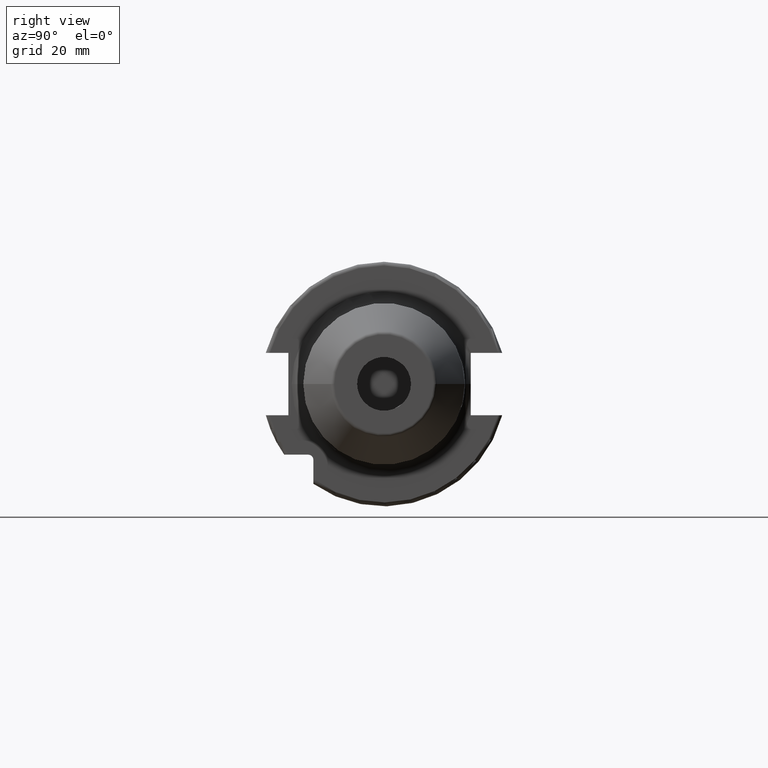
[diagram: clean part render]
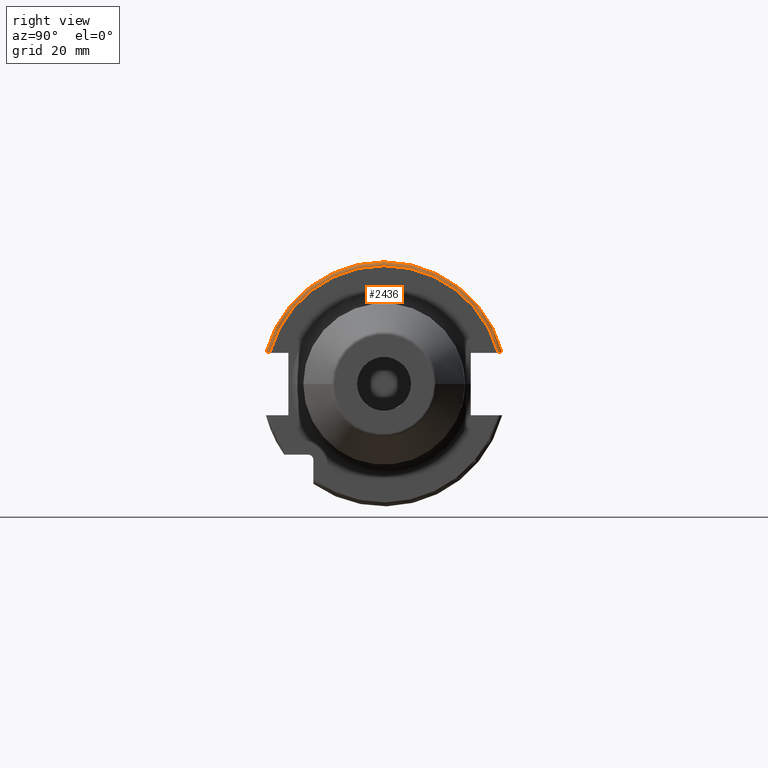
[diagram: same view with one face highlighted and labeled with its STEP entity id]
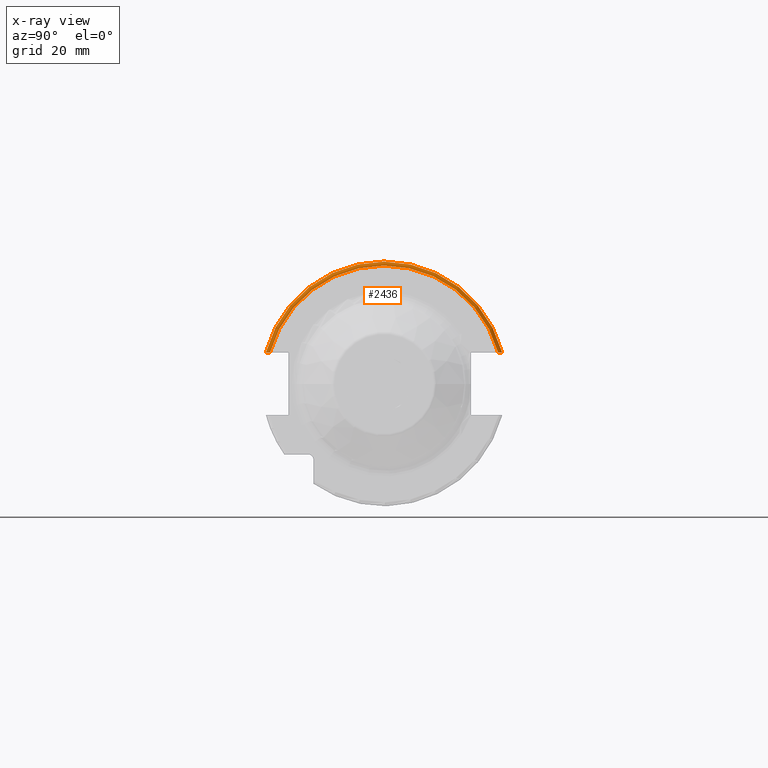
[diagram: x-ray of the same camera — body ghosted, the highlighted face saturated]
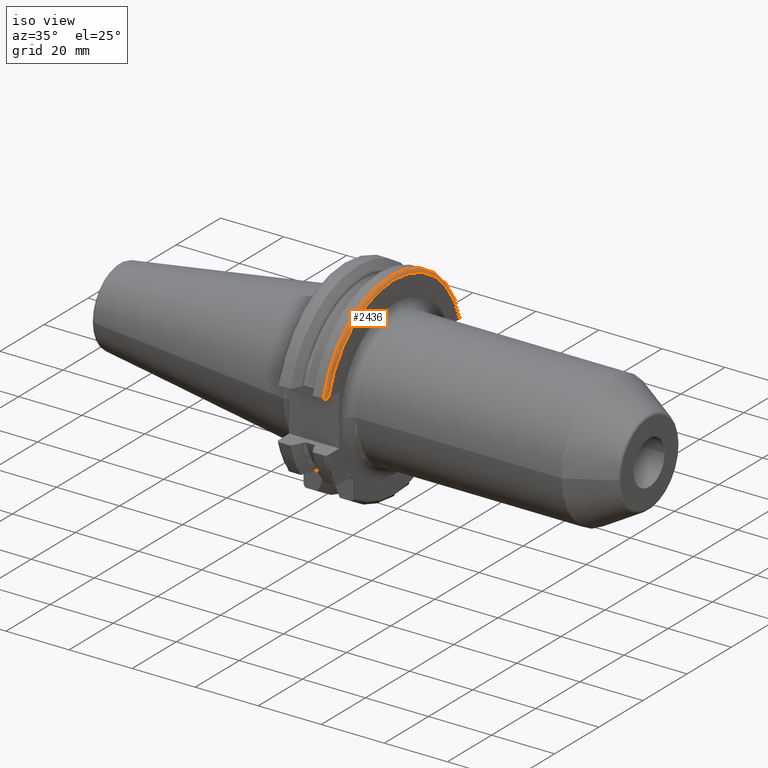
[diagram: same view with one face highlighted and labeled with its STEP entity id]
A machine part, right view. The second image highlights one B-rep face of the part: STEP entity #2436.
The next image is the same camera in x-ray: the body ghosted, the highlighted face saturated — about 0% of this face is hidden behind the body in this view.
A second angle (iso view) of the same face is appended — the face is thin or edge-on in the first view.
In plain terms, the highlighted toroidal blend (fillet) surface has major radius 30.7625 mm and minor (blend) radius 1 mm.
Its self-contained STEP definition (entity closure, byte-faithful):
#740=CARTESIAN_POINT('',(1.905E1,2.967695075728E1,8.1E0));
#741=CARTESIAN_POINT('',(1.905E1,2.975534544469E1,8.1E0));
#742=CARTESIAN_POINT('',(1.903327439626E1,2.990764711142E1,8.1E0));
#743=CARTESIAN_POINT('',(1.895996891946E1,3.012703601742E1,8.1E0));
#744=CARTESIAN_POINT('',(1.884140031799E1,3.032417656220E1,8.1E0));
#745=CARTESIAN_POINT('',(1.868299781019E1,3.048994814949E1,8.1E0));
#746=CARTESIAN_POINT('',(1.849140267654E1,3.061604720054E1,8.1E0));
#747=CARTESIAN_POINT('',(1.827601722220E1,3.069451682863E1,8.1E0));
#748=CARTESIAN_POINT('',(1.812684136073E1,3.071231684927E1,8.1E0));
#749=CARTESIAN_POINT('',(1.805E1,3.071231684927E1,8.1E0));
#751=CARTESIAN_POINT('',(1.905E1,0.E0,0.E0));
#752=DIRECTION('',(1.E0,0.E0,0.E0));
#753=DIRECTION('',(0.E0,9.647119303464E-1,2.633075985372E-1));
#754=AXIS2_PLACEMENT_3D('',#751,#752,#753);
#756=CARTESIAN_POINT('',(1.805E1,-3.071231684927E1,8.1E0));
#757=CARTESIAN_POINT('',(1.812702529647E1,-3.071231684927E1,8.1E0));
#758=CARTESIAN_POINT('',(1.827656518037E1,-3.069444719907E1,8.1E0));
#759=CARTESIAN_POINT('',(1.849273698584E1,-3.061544862934E1,8.1E0));
#760=CARTESIAN_POINT('',(1.868460186607E1,-3.048863686818E1,8.1E0));
#761=CARTESIAN_POINT('',(1.884263679922E1,-3.032251203229E1,8.1E0));
#762=CARTESIAN_POINT('',(1.896052984725E1,-3.012566774399E1,8.1E0));
#763=CARTESIAN_POINT('',(1.903334281973E1,-2.990707436768E1,8.1E0));
#764=CARTESIAN_POINT('',(1.905E1,-2.975515277820E1,8.1E0));
#765=CARTESIAN_POINT('',(1.905E1,-2.967695075728E1,8.1E0));
#908=CARTESIAN_POINT('',(1.805E1,0.E0,0.E0));
#909=DIRECTION('',(1.E0,0.E0,0.E0));
#910=DIRECTION('',(0.E0,9.669363825036E-1,2.550177095632E-1));
#911=AXIS2_PLACEMENT_3D('',#908,#909,#910);
#1500=CARTESIAN_POINT('',(1.905E1,-2.967695075728E1,8.1E0));
#1501=VERTEX_POINT('',#1500);
#1504=CARTESIAN_POINT('',(1.805E1,3.071231684927E1,8.1E0));
#1505=VERTEX_POINT('',#1504);
#1508=CARTESIAN_POINT('',(1.805E1,-3.071231684927E1,8.1E0));
#1509=VERTEX_POINT('',#1508);
#1539=VERTEX_POINT('',#740);
#2423=CARTESIAN_POINT('',(1.805E1,0.E0,0.E0));
#2424=DIRECTION('',(1.E0,0.E0,0.E0));
#2425=DIRECTION('',(0.E0,-1.E0,0.E0));
#2426=AXIS2_PLACEMENT_3D('',#2423,#2424,#2425);
#2427=TOROIDAL_SURFACE('',#2426,3.07625E1,1.E0);
#2428=ORIENTED_EDGE('',*,*,#2176,.F.);
#2429=ORIENTED_EDGE('',*,*,#1867,.T.);
#2431=ORIENTED_EDGE('',*,*,#2430,.F.);
#2433=ORIENTED_EDGE('',*,*,#2432,.F.);
#2434=EDGE_LOOP('',(#2428,#2429,#2431,#2433));
#2435=FACE_OUTER_BOUND('',#2434,.F.);
#2436=ADVANCED_FACE('',(#2435),#2427,.T.);
#750=B_SPLINE_CURVE_WITH_KNOTS('',3,(#740,#741,#742,#743,#744,#745,#746,#747,
#748,#749),.UNSPECIFIED.,.F.,.F.,(4,1,1,1,1,1,1,4),(0.E0,1.428571428571E-1,
2.857142857143E-1,4.285714285714E-1,5.714285714286E-1,7.142857142857E-1,
8.571428571429E-1,1.E0),.UNSPECIFIED.);
#755=CIRCLE('',#754,3.07625E1);
#766=B_SPLINE_CURVE_WITH_KNOTS('',3,(#756,#757,#758,#759,#760,#761,#762,#763,
#764,#765),.UNSPECIFIED.,.F.,.F.,(4,1,1,1,1,1,1,4),(0.E0,1.428571428571E-1,
2.857142857143E-1,4.285714285714E-1,5.714285714286E-1,7.142857142857E-1,
8.571428571429E-1,1.E0),.UNSPECIFIED.);
#912=CIRCLE('',#911,3.17625E1);
#1867=EDGE_CURVE('',#1539,#1501,#755,.T.);
#2176=EDGE_CURVE('',#1539,#1505,#750,.T.);
#2430=EDGE_CURVE('',#1509,#1501,#766,.T.);
#2432=EDGE_CURVE('',#1505,#1509,#912,.T.);